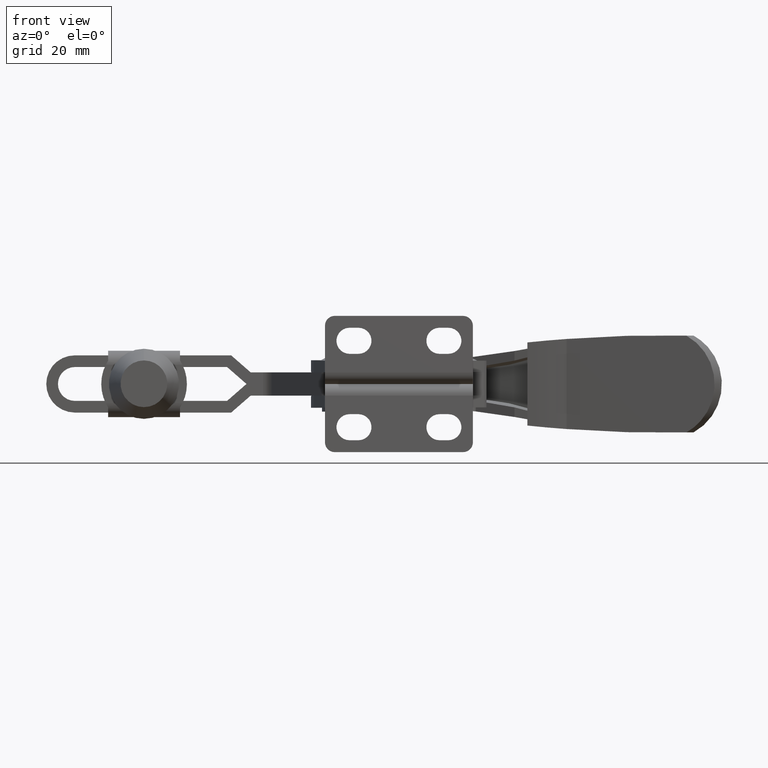
[diagram: clean part render]
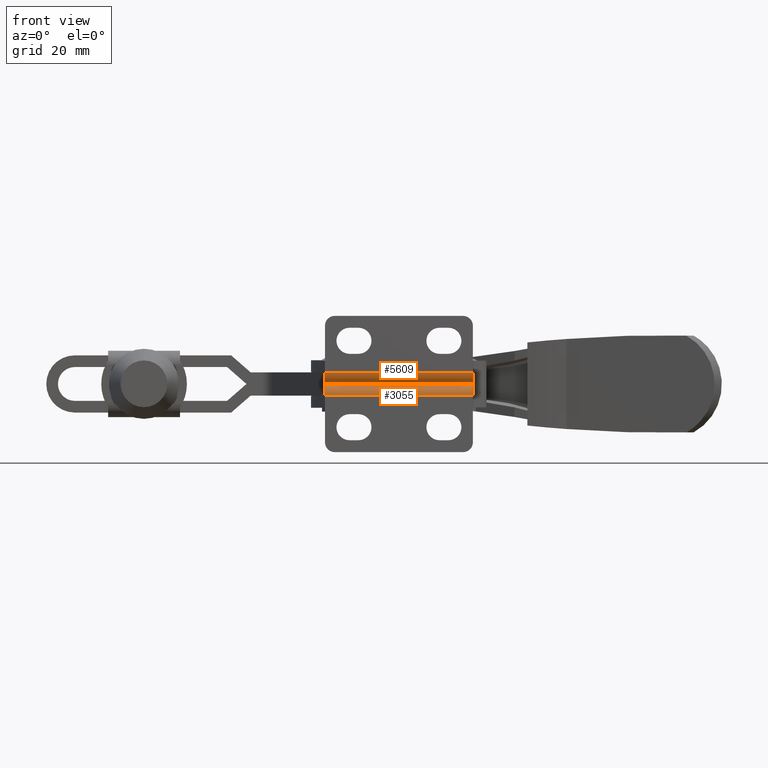
[diagram: same view with one multi-face feature highlighted, each face labeled with its STEP entity id]
A machine part, front view. The highlighted faces form ONE feature: a constant-radius fillet chain: 2 tangent blend faces with common blend radius 3 mm. The faces share edges in the B-rep.
Their STEP definitions:
[1] entity #5609 (Cylinder):
#115 = CARTESIAN_POINT ( 'NONE',  ( 45.00000000000000000, 2.999997076746712600, 2.995809861063910800 ) ) ;
#167 = ORIENTED_EDGE ( 'NONE', *, *, #1671, .F. ) ;
#213 = CARTESIAN_POINT ( 'NONE',  ( 45.00000000000000000, 2.999997076746712600, -0.004190138935925534500 ) ) ;
#331 = CARTESIAN_POINT ( 'NONE',  ( 3.499999999999809000, -2.923253121338287300E-006, 2.995809861063910800 ) ) ;
#674 = DIRECTION ( 'NONE',  ( 0.0000000000000000000, 0.0000000000000000000, -1.000000000000000000 ) ) ;
#1235 = AXIS2_PLACEMENT_3D ( 'NONE', #8110, #2921, #8977 ) ;
#1671 = EDGE_CURVE ( 'NONE', #6303, #9373, #8813, .T. ) ;
#1700 = CIRCLE ( 'NONE', #6373, 2.999999999999836100 ) ;
#2700 = VECTOR ( 'NONE', #5723, 1000.000000000000000 ) ;
#2724 = AXIS2_PLACEMENT_3D ( 'NONE', #115, #5342, #10481 ) ;
#2921 = DIRECTION ( 'NONE',  ( -1.000000000000000000, -1.114759106724995700E-016, -0.0000000000000000000 ) ) ;
#3167 = FACE_OUTER_BOUND ( 'NONE', #9575, .T. ) ;
#3301 = ORIENTED_EDGE ( 'NONE', *, *, #7395, .F. ) ;
#4051 = CIRCLE ( 'NONE', #1235, 2.999999999999835700 ) ;
#4553 = ORIENTED_EDGE ( 'NONE', *, *, #10029, .T. ) ;
#5342 = DIRECTION ( 'NONE',  ( -1.000000000000000000, 0.0000000000000000000, 0.0000000000000000000 ) ) ;
#5609 = ADVANCED_FACE ( 'NONE', ( #3167 ), #7490, .T. ) ;
#5723 = DIRECTION ( 'NONE',  ( -1.000000000000000000, 0.0000000000000000000, 0.0000000000000000000 ) ) ;
#5887 = DIRECTION ( 'NONE',  ( 1.000000000000000000, 0.0000000000000000000, 0.0000000000000000000 ) ) ;
#6273 = VERTEX_POINT ( 'NONE', #331 ) ;
#6303 = VERTEX_POINT ( 'NONE', #10775 ) ;
#6373 = AXIS2_PLACEMENT_3D ( 'NONE', #11081, #5887, #674 ) ;
#6567 = ORIENTED_EDGE ( 'NONE', *, *, #9859, .F. ) ;
#7395 = EDGE_CURVE ( 'NONE', #8644, #6303, #1700, .T. ) ;
#7490 = CYLINDRICAL_SURFACE ( 'NONE', #2724, 2.999999999999836100 ) ;
#8110 = CARTESIAN_POINT ( 'NONE',  ( 3.499999999999809000, 2.999997076746712600, 2.995809861063910800 ) ) ;
#8200 = DIRECTION ( 'NONE',  ( -1.000000000000000000, 0.0000000000000000000, 0.0000000000000000000 ) ) ;
#8644 = VERTEX_POINT ( 'NONE', #8770 ) ;
#8770 = CARTESIAN_POINT ( 'NONE',  ( 41.50000000000009900, -2.923253123073010800E-006, 2.995809861063895700 ) ) ;
#8813 = LINE ( 'NONE', #213, #10853 ) ;
#8977 = DIRECTION ( 'NONE',  ( -1.445602896647418500E-016, 1.000000000000000000, 0.0000000000000000000 ) ) ;
#9067 = LINE ( 'NONE', #10915, #2700 ) ;
#9373 = VERTEX_POINT ( 'NONE', #10887 ) ;
#9575 = EDGE_LOOP ( 'NONE', ( #3301, #4553, #6567, #167 ) ) ;
#9859 = EDGE_CURVE ( 'NONE', #9373, #6273, #4051, .T. ) ;
#10029 = EDGE_CURVE ( 'NONE', #8644, #6273, #9067, .T. ) ;
#10481 = DIRECTION ( 'NONE',  ( 0.0000000000000000000, 0.0000000000000000000, 1.000000000000000000 ) ) ;
#10775 = CARTESIAN_POINT ( 'NONE',  ( 41.50000000000010700, 2.999997076746712100, -0.004190138935924667100 ) ) ;
#10853 = VECTOR ( 'NONE', #8200, 1000.000000000000000 ) ;
#10887 = CARTESIAN_POINT ( 'NONE',  ( 3.499999999999813000, 2.999997076746712100, -0.004190138935924667100 ) ) ;
#10915 = CARTESIAN_POINT ( 'NONE',  ( 45.00000000000000000, -2.923253123140773400E-006, 2.995809861063910800 ) ) ;
#11081 = CARTESIAN_POINT ( 'NONE',  ( 41.50000000000009900, 2.999997076746712600, 2.995809861063910800 ) ) ;
[2] entity #3055 (Cylinder):
#52 = CIRCLE ( 'NONE', #6007, 2.999999999999835700 ) ;
#56 = DIRECTION ( 'NONE',  ( -1.000000000000000000, 0.0000000000000000000, 0.0000000000000000000 ) ) ;
#213 = CARTESIAN_POINT ( 'NONE',  ( 45.00000000000000000, 2.999997076746712600, -0.004190138935925534500 ) ) ;
#225 = VERTEX_POINT ( 'NONE', #3165 ) ;
#417 = AXIS2_PLACEMENT_3D ( 'NONE', #1649, #7705, #2530 ) ;
#419 = DIRECTION ( 'NONE',  ( -1.445602896647418500E-016, 1.000000000000000000, 0.0000000000000000000 ) ) ;
#512 = ORIENTED_EDGE ( 'NONE', *, *, #3104, .F. ) ;
#772 = CYLINDRICAL_SURFACE ( 'NONE', #1600, 2.999999999999836100 ) ;
#980 = CARTESIAN_POINT ( 'NONE',  ( 45.00000000000000700, -2.923253123032353200E-006, -3.004190138935760600 ) ) ;
#1600 = AXIS2_PLACEMENT_3D ( 'NONE', #9568, #56, #6969 ) ;
#1649 = CARTESIAN_POINT ( 'NONE',  ( 41.50000000000010700, 2.999997076746712600, -3.004190138935760600 ) ) ;
#1671 = EDGE_CURVE ( 'NONE', #6303, #9373, #8813, .T. ) ;
#1862 = DIRECTION ( 'NONE',  ( -1.000000000000000000, 0.0000000000000000000, 0.0000000000000000000 ) ) ;
#2530 = DIRECTION ( 'NONE',  ( 0.0000000000000000000, 0.0000000000000000000, 1.000000000000000000 ) ) ;
#2634 = CARTESIAN_POINT ( 'NONE',  ( 41.50000000000010700, -2.923253122964590600E-006, -3.004190138935745900 ) ) ;
#3055 = ADVANCED_FACE ( 'NONE', ( #5405 ), #772, .T. ) ;
#3104 = EDGE_CURVE ( 'NONE', #6089, #225, #7694, .T. ) ;
#3165 = CARTESIAN_POINT ( 'NONE',  ( 3.499999999999813000, -2.923253121229867100E-006, -3.004190138935760600 ) ) ;
#5405 = FACE_OUTER_BOUND ( 'NONE', #11194, .T. ) ;
#5576 = ORIENTED_EDGE ( 'NONE', *, *, #7208, .T. ) ;
#5633 = DIRECTION ( 'NONE',  ( 1.000000000000000000, 1.114759106724995700E-016, 0.0000000000000000000 ) ) ;
#6007 = AXIS2_PLACEMENT_3D ( 'NONE', #10819, #5633, #419 ) ;
#6089 = VERTEX_POINT ( 'NONE', #2634 ) ;
#6303 = VERTEX_POINT ( 'NONE', #10775 ) ;
#6969 = DIRECTION ( 'NONE',  ( 0.0000000000000000000, 0.0000000000000000000, -1.000000000000000000 ) ) ;
#7156 = VECTOR ( 'NONE', #1862, 1000.000000000000000 ) ;
#7208 = EDGE_CURVE ( 'NONE', #9373, #225, #52, .T. ) ;
#7694 = LINE ( 'NONE', #980, #7156 ) ;
#7705 = DIRECTION ( 'NONE',  ( -1.000000000000000000, 0.0000000000000000000, 0.0000000000000000000 ) ) ;
#8200 = DIRECTION ( 'NONE',  ( -1.000000000000000000, 0.0000000000000000000, 0.0000000000000000000 ) ) ;
#8505 = EDGE_CURVE ( 'NONE', #6089, #6303, #9789, .T. ) ;
#8813 = LINE ( 'NONE', #213, #10853 ) ;
#9373 = VERTEX_POINT ( 'NONE', #10887 ) ;
#9568 = CARTESIAN_POINT ( 'NONE',  ( 45.00000000000000700, 2.999997076746712600, -3.004190138935760600 ) ) ;
#9789 = CIRCLE ( 'NONE', #417, 2.999999999999836100 ) ;
#10676 = ORIENTED_EDGE ( 'NONE', *, *, #8505, .T. ) ;
#10775 = CARTESIAN_POINT ( 'NONE',  ( 41.50000000000010700, 2.999997076746712100, -0.004190138935924667100 ) ) ;
#10819 = CARTESIAN_POINT ( 'NONE',  ( 3.499999999999812600, 2.999997076746712600, -3.004190138935760600 ) ) ;
#10853 = VECTOR ( 'NONE', #8200, 1000.000000000000000 ) ;
#10887 = CARTESIAN_POINT ( 'NONE',  ( 3.499999999999813000, 2.999997076746712100, -0.004190138935924667100 ) ) ;
#11108 = ORIENTED_EDGE ( 'NONE', *, *, #1671, .T. ) ;
#11194 = EDGE_LOOP ( 'NONE', ( #10676, #11108, #5576, #512 ) ) ;